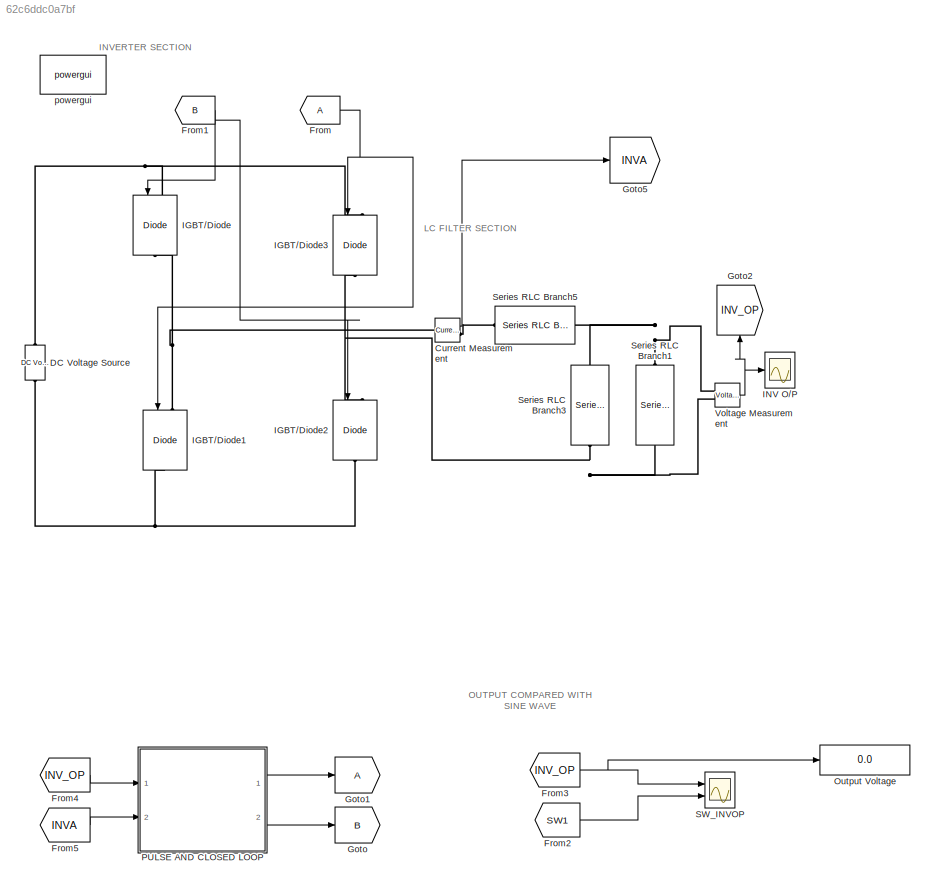
MODEL slx_62c6ddc0a7bf
KIND model
CONFIG AbsTol = auto
CONFIG EnableMultiTasking = on
CONFIG FixedStep = auto
CONFIG MaxStep = auto
CONFIG MinStep = auto
CONFIG RelTol = 1e-3
CONFIG SampleTimeConstraint = Unconstrained
CONFIG Solver = ode23tb
CONFIG SolverName = ode23tb
CONFIG StartTime = 0.0
CONFIG StopTime = 1
BLOCK [Reference] Current Measurement  REF=powerlib/Measurements/Current Measurement
  Ports = [0, 1, 0, 0, 0, 1, 1]
  SourceBlock = powerlib/Measurements/Current Measurement
  SourceProductBaseCode = PS
  SourceProductName = Simscape Power Systems
  SourceType = Current Measurement
  UserDataPersistent = on
BLOCK [Reference] DC Voltage Source  REF=powerlib/Electrical
Sources/DC Voltage Source
  Ports = [0, 0, 0, 0, 0, 1, 1]
  SourceBlock = powerlib/Electrical\nSources/DC Voltage Source
  SourceProductBaseCode = PS
  SourceProductName = Simscape Power Systems
  SourceType = DC Voltage Source
BLOCK [From] From
BLOCK [From] From1
  GotoTag = B
BLOCK [From] From2
  GotoTag = SW1
BLOCK [From] From3
  GotoTag = INV_OP
BLOCK [From] From4
  GotoTag = INV_OP
BLOCK [From] From5
  GotoTag = INVA
BLOCK [Goto] Goto
  GotoTag = B
BLOCK [Goto] Goto1
BLOCK [Goto] Goto2
  GotoTag = INV_OP
BLOCK [Goto] Goto5
  GotoTag = INVA
BLOCK [Reference] IGBT//Diode  REF=powerlib/Power
Electronics/IGBT//Diode
  Ports = [1, 0, 0, 0, 0, 1, 1]
  SourceBlock = powerlib/Power\nElectronics/IGBT//Diode
  SourceProductBaseCode = PS
  SourceProductName = Simscape Power Systems
  SourceType = IGBT/Diode
BLOCK [Reference] IGBT//Diode1  REF=powerlib/Power
Electronics/IGBT//Diode
  Ports = [1, 0, 0, 0, 0, 1, 1]
  SourceBlock = powerlib/Power\nElectronics/IGBT//Diode
  SourceProductBaseCode = PS
  SourceProductName = Simscape Power Systems
  SourceType = IGBT/Diode
BLOCK [Reference] IGBT//Diode2  REF=powerlib/Power
Electronics/IGBT//Diode
  Ports = [1, 0, 0, 0, 0, 1, 1]
  SourceBlock = powerlib/Power\nElectronics/IGBT//Diode
  SourceProductBaseCode = PS
  SourceProductName = Simscape Power Systems
  SourceType = IGBT/Diode
BLOCK [Reference] IGBT//Diode3  REF=powerlib/Power
Electronics/IGBT//Diode
  Ports = [1, 0, 0, 0, 0, 1, 1]
  SourceBlock = powerlib/Power\nElectronics/IGBT//Diode
  SourceProductBaseCode = PS
  SourceProductName = Simscape Power Systems
  SourceType = IGBT/Diode
BLOCK [Scope] INV O//P
  Floating = off
  NumInputPorts = 1
  Ports = [1]
  ScopeSpecificationString = C++SS(StrPVP('Location','[11, 64, 1549, 767]'),StrPVP('Open','off'),StrPVP('ZoomMode','xonly'),MxPVP('AxesTitles',53,'struct(''axes1'',''%<SignalLabel>'')'),MxPVP('ScopeGraphics',56,'struct(''FigureColor'',''[0.501960784313725 0.501960784313725 0.501960784313725]'',''AxesColor'',''[0 0 0]'',''AxesTickColor'',''[1 1 1]'',''LineColors'',''[1 1 0;1 0 1;0 1 1;1 0 0;0 1 0;0 0 1]'',''LineStyles'',''-|-|...<+308ch>
BLOCK [Display] Output Voltage
  Decimation = 1
  Ports = [1]
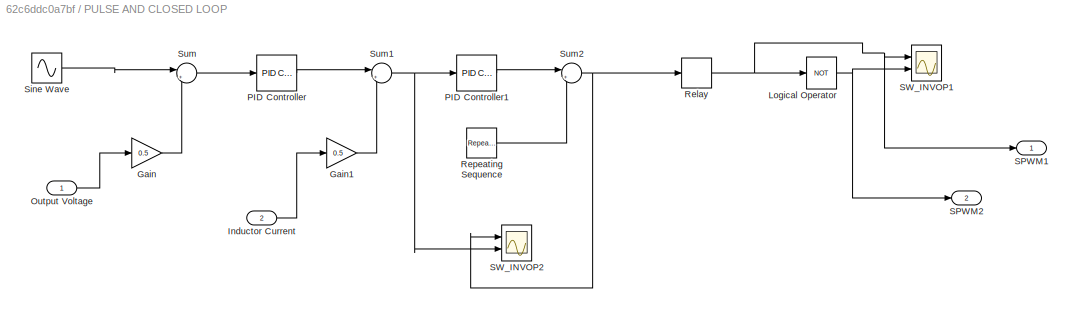
BLOCK [SubSystem] PULSE AND CLOSED LOOP
  Ports = [2, 2]
  RequestExecContextInheritance = off
BLOCK [Gain] PULSE AND CLOSED LOOP/Gain
  Gain = 0.5
  OutDataTypeStr = Inherit: Inherit via internal rule
  ParamDataTypeStr = Inherit: Inherit via internal rule
  SaturateOnIntegerOverflow = off
BLOCK [Gain] PULSE AND CLOSED LOOP/Gain1
  Gain = 0.5
  OutDataTypeStr = Inherit: Inherit via internal rule
  ParamDataTypeStr = Inherit: Inherit via internal rule
  SaturateOnIntegerOverflow = off
BLOCK [Inport] PULSE AND CLOSED LOOP/Inductor Current
  IconDisplay = Port number
  Port = 2
BLOCK [Logic] PULSE AND CLOSED LOOP/Logical Operator
  AllPortsSameDT = off
  Operator = NOT
  OutDataTypeStr = boolean
  Ports = [1, 1]
BLOCK [Inport] PULSE AND CLOSED LOOP/Output Voltage 
  IconDisplay = Port number
BLOCK [Reference] PULSE AND CLOSED LOOP/PID Controller  REF=simulink/Continuous/PID Controller
  Ports = [1, 1]
  SourceBlock = simulink/Continuous/PID Controller
  SourceProductBaseCode = SL
  SourceProductName = Simulink
  SourceType = PID 1dof
BLOCK [Reference] PULSE AND CLOSED LOOP/PID Controller1  REF=simulink/Continuous/PID Controller
  Ports = [1, 1]
  SourceBlock = simulink/Continuous/PID Controller
  SourceProductBaseCode = SL
  SourceProductName = Simulink
  SourceType = PID 1dof
BLOCK [Relay] PULSE AND CLOSED LOOP/Relay
  InputProcessing = Elements as channels (sample based)
BLOCK [Reference] PULSE AND CLOSED LOOP/Repeating Sequence  REF=simulink/Sources/Repeating
Sequence
  Ports = [0, 1]
  SourceBlock = simulink/Sources/Repeating\nSequence
  SourceProductBaseCode = SL
  SourceProductName = Simulink
  SourceType = Repeating table
BLOCK [Outport] PULSE AND CLOSED LOOP/SPWM1
  IconDisplay = Port number
BLOCK [Outport] PULSE AND CLOSED LOOP/SPWM2
  IconDisplay = Port number
  Port = 2
BLOCK [Scope] PULSE AND CLOSED LOOP/SW_INVOP1
  Floating = off
  NumInputPorts = 2
  Ports = [2]
  ScopeSpecificationString = C++SS(StrPVP('Location','[11, 64, 1549, 834]'),StrPVP('Open','off'),StrPVP('ZoomMode','xonly'),MxPVP('AxesTitles',53,'struct(''axes1'',''%<SignalLabel>'',''axes2'',''%<SignalLabel>'')'),MxPVP('ScopeGraphics',56,'struct(''FigureColor'',''[0.501960784313725 0.501960784313725 0.501960784313725]'',''AxesColor'',''[0 0 0]'',''AxesTickColor'',''[1 1 1]'',''LineColors'',''[1 1 0;1 0 1;0 1 1;1 0 0;0 1 0;0...<+346ch>
BLOCK [Scope] PULSE AND CLOSED LOOP/SW_INVOP2
  Floating = off
  NumInputPorts = 2
  Ports = [2]
  ScopeSpecificationString = C++SS(StrPVP('Location','[11, 64, 1549, 793]'),StrPVP('Open','off'),StrPVP('ZoomMode','xonly'),MxPVP('AxesTitles',53,'struct(''axes1'',''%<SignalLabel>'',''axes2'',''%<SignalLabel>'')'),MxPVP('ScopeGraphics',56,'struct(''FigureColor'',''[0.501960784313725 0.501960784313725 0.501960784313725]'',''AxesColor'',''[0 0 0]'',''AxesTickColor'',''[1 1 1]'',''LineColors'',''[1 1 0;1 0 1;0 1 1;1 0 0;0 1 0;0...<+338ch>
BLOCK [Sin] PULSE AND CLOSED LOOP/Sine Wave
  Amplitude = 130
  Frequency = 2*pi*50
  Ports = [0, 1]
  SampleTime = 0
BLOCK [Sum] PULSE AND CLOSED LOOP/Sum
  IconShape = round
  InputSameDT = off
  Inputs = |+-
  OutDataTypeStr = Inherit: Inherit via internal rule
  Ports = [2, 1]
  SaturateOnIntegerOverflow = off
BLOCK [Sum] PULSE AND CLOSED LOOP/Sum1
  IconShape = round
  InputSameDT = off
  Inputs = |+-
  OutDataTypeStr = Inherit: Inherit via internal rule
  Ports = [2, 1]
  SaturateOnIntegerOverflow = off
BLOCK [Sum] PULSE AND CLOSED LOOP/Sum2
  IconShape = round
  InputSameDT = off
  Inputs = |+-
  OutDataTypeStr = Inherit: Inherit via internal rule
  Ports = [2, 1]
  SaturateOnIntegerOverflow = off
BLOCK [Scope] SW_INVOP
  Floating = off
  NumInputPorts = 2
  Ports = [2]
  ScopeSpecificationString = C++SS(StrPVP('Location','[10, 43, 1548, 853]'),StrPVP('Open','off'),StrPVP('ZoomMode','xonly'),MxPVP('AxesTitles',53,'struct(''axes1'',''%<SignalLabel>'',''axes2'',''%<SignalLabel>'')'),MxPVP('ScopeGraphics',56,'struct(''FigureColor'',''[0.501960784313725 0.501960784313725 0.501960784313725]'',''AxesColor'',''[0 0 0]'',''AxesTickColor'',''[1 1 1]'',''LineColors'',''[1 1 0;1 0 1;0 1 1;1 0 0;0 1 0;0...<+346ch>
BLOCK [Reference] Series RLC Branch1  REF=powerlib/Elements/Series RLC Branch
  Ports = [0, 0, 0, 0, 0, 1, 1]
  SourceBlock = powerlib/Elements/Series RLC Branch
  SourceProductBaseCode = PS
  SourceProductName = Simscape Power Systems
  SourceType = Series RLC Branch
BLOCK [Reference] Series RLC Branch3  REF=powerlib/Elements/Series RLC Branch
  Ports = [0, 0, 0, 0, 0, 1, 1]
  SourceBlock = powerlib/Elements/Series RLC Branch
  SourceProductBaseCode = PS
  SourceProductName = Simscape Power Systems
  SourceType = Series RLC Branch
BLOCK [Reference] Series RLC Branch5  REF=powerlib/Elements/Series RLC Branch
  Ports = [0, 0, 0, 0, 0, 1, 1]
  SourceBlock = powerlib/Elements/Series RLC Branch
  SourceProductBaseCode = PS
  SourceProductName = Simscape Power Systems
  SourceType = Series RLC Branch
BLOCK [Reference] Voltage Measurement  REF=powerlib/Measurements/Voltage Measurement
  Ports = [0, 1, 0, 0, 0, 2]
  SourceBlock = powerlib/Measurements/Voltage Measurement
  SourceProductBaseCode = PS
  SourceProductName = Simscape Power Systems
  SourceType = Voltage Measurement
  UserDataPersistent = on
BLOCK [Reference] powergui  REF=powerlib/powergui
  Ports = []
  Priority = 1
  SourceBlock = powerlib/powergui
  SourceProductBaseCode = PS
  SourceProductName = Simscape Power Systems
  SourceType = PSB option menu block
ANNOTATION (root): OUTPUT COMPARED WITH SINE WAVE
ANNOTATION (root): INVERTER SECTION
ANNOTATION (root): LC FILTER SECTION
LINE Current Measurement:1 -> Goto5:1
NET From1:1 -> IGBT//Diode2:1, IGBT//Diode:1
LINE From2:1 -> SW_INVOP:2
NET From3:1 -> Output Voltage:1, SW_INVOP:1
LINE From4:1 -> PULSE AND CLOSED LOOP:1
LINE From5:1 -> PULSE AND CLOSED LOOP:2
NET From:1 -> IGBT//Diode1:1, IGBT//Diode3:1
LINE PULSE AND CLOSED LOOP/Gain1:1 -> PULSE AND CLOSED LOOP/Sum1:2
LINE PULSE AND CLOSED LOOP/Gain:1 -> PULSE AND CLOSED LOOP/Sum:2
LINE PULSE AND CLOSED LOOP/Inductor Current:1 -> PULSE AND CLOSED LOOP/Gain1:1
NET PULSE AND CLOSED LOOP/Logical Operator:1 -> PULSE AND CLOSED LOOP/SPWM2:1, PULSE AND CLOSED LOOP/SW_INVOP1:2
LINE PULSE AND CLOSED LOOP/Output Voltage :1 -> PULSE AND CLOSED LOOP/Gain:1
LINE PULSE AND CLOSED LOOP/PID Controller1:1 -> PULSE AND CLOSED LOOP/Sum2:1
LINE PULSE AND CLOSED LOOP/PID Controller:1 -> PULSE AND CLOSED LOOP/Sum1:1
NET PULSE AND CLOSED LOOP/Relay:1 -> PULSE AND CLOSED LOOP/Logical Operator:1, PULSE AND CLOSED LOOP/SPWM1:1, PULSE AND CLOSED LOOP/SW_INVOP1:1
LINE PULSE AND CLOSED LOOP/Repeating Sequence:1 -> PULSE AND CLOSED LOOP/Sum2:2
LINE PULSE AND CLOSED LOOP/Sine Wave:1 -> PULSE AND CLOSED LOOP/Sum:1
NET PULSE AND CLOSED LOOP/Sum1:1 -> PULSE AND CLOSED LOOP/PID Controller1:1, PULSE AND CLOSED LOOP/SW_INVOP2:2
NET PULSE AND CLOSED LOOP/Sum2:1 -> PULSE AND CLOSED LOOP/Relay:1, PULSE AND CLOSED LOOP/SW_INVOP2:1
LINE PULSE AND CLOSED LOOP/Sum:1 -> PULSE AND CLOSED LOOP/PID Controller:1
LINE PULSE AND CLOSED LOOP:1 -> Goto1:1
LINE PULSE AND CLOSED LOOP:2 -> Goto:1
NET Voltage Measurement:1 -> Goto2:1, INV O//P:1
PNET net1: Current Measurement:LConn1 -- IGBT//Diode1:LConn1 -- IGBT//Diode:RConn1
PLINE Current Measurement:RConn1 -- Series RLC Branch5:RConn1
PNET net2: DC Voltage Source:LConn1 -- IGBT//Diode1:RConn1 -- IGBT//Diode2:RConn1
PNET net3: DC Voltage Source:RConn1 -- IGBT//Diode3:LConn1 -- IGBT//Diode:LConn1
PNET net4: IGBT//Diode2:LConn1 -- IGBT//Diode3:RConn1 -- Series RLC Branch1:RConn1 -- Series RLC Branch3:RConn1 -- Voltage Measurement:LConn2
PNET net5: Series RLC Branch1:LConn1 -- Series RLC Branch3:LConn1 -- Series RLC Branch5:LConn1 -- Voltage Measurement:LConn1
note: NET lines group one-source signal fan-out (src -> all destinations, sorted); 1:1 wires keep LINE; PNET lines group multi-terminal physical nets as a canonical sorted terminal list (undirected conserving connections); 2-terminal nets keep the pairwise PLINE form
